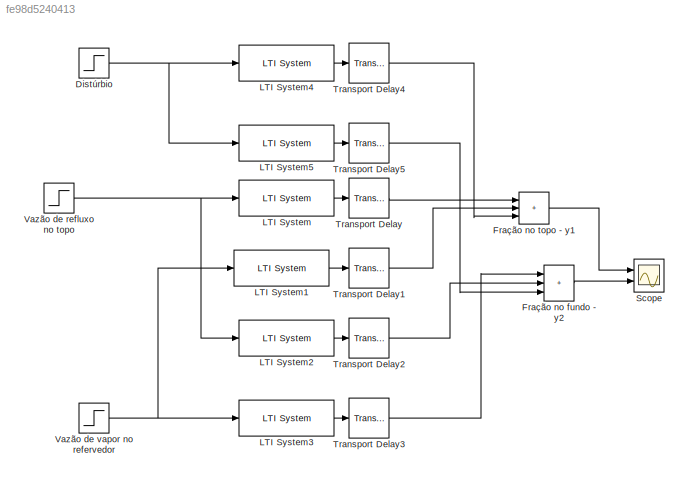
MODEL slx_fe98d5240413
KIND model
CONFIG AbsTol = auto
CONFIG EnableMultiTasking = off
CONFIG FixedStep = auto
CONFIG MaxStep = 1e-3
CONFIG MinStep = 1e-4
CONFIG RelTol = 1e-3
CONFIG SampleTimeConstraint = Unconstrained
CONFIG SolverName = ode45
CONFIG StartTime = 0.0
CONFIG StopTime = 100
BLOCK [Step] Distúrbio
  After = 0
  SampleTime = 0
  Time = 0
BLOCK [Sum] Fração no fundo - y2
  IconShape = rectangular
  Inputs = +++
  Ports = [3, 1]
BLOCK [Sum] Fração no topo - y1
  IconShape = rectangular
  Inputs = +++
  Ports = [3, 1]
BLOCK [Reference] LTI System  REF=cstblocks/LTI System
  Ports = [1, 1]
  SourceBlock = cstblocks/LTI System
  SourceProductBaseCode = CT
  SourceType = LTI Block
BLOCK [Reference] LTI System1  REF=cstblocks/LTI System
  Ports = [1, 1]
  SourceBlock = cstblocks/LTI System
  SourceProductBaseCode = CT
  SourceType = LTI Block
BLOCK [Reference] LTI System2  REF=cstblocks/LTI System
  Ports = [1, 1]
  SourceBlock = cstblocks/LTI System
  SourceProductBaseCode = CT
  SourceType = LTI Block
BLOCK [Reference] LTI System3  REF=cstblocks/LTI System
  Ports = [1, 1]
  SourceBlock = cstblocks/LTI System
  SourceProductBaseCode = CT
  SourceType = LTI Block
BLOCK [Reference] LTI System4  REF=cstblocks/LTI System
  Ports = [1, 1]
  SourceBlock = cstblocks/LTI System
  SourceProductBaseCode = CT
  SourceType = LTI Block
BLOCK [Reference] LTI System5  REF=cstblocks/LTI System
  Ports = [1, 1]
  SourceBlock = cstblocks/LTI System
  SourceProductBaseCode = CT
  SourceType = LTI Block
BLOCK [Scope] Scope
  Floating = off
  NumInputPorts = 2
  Ports = [2]
  ScopeSpecificationString = Simulink.scopes.TimeScopeBlockCfg('CurrentConfiguration', extmgr.ConfigurationSet(extmgr.Configuration('Core','General UI',true,'FigureColor',[1 1 1]),extmgr.Configuration('Core','Source UI',true),extmgr.Configuration('Sources','WiredSimulink',true),extmgr.Configuration('Visuals','Time Domain',true,'SerializedDisplays',{struct('MinYLimReal','-15.09574','MaxYLimReal','15.26759','YLabelReal','','Min...<+1555ch>
BLOCK [TransportDelay] Transport Delay
  Ports = [1, 1]
BLOCK [TransportDelay] Transport Delay1
  DelayTime = 3
  Ports = [1, 1]
BLOCK [TransportDelay] Transport Delay2
  DelayTime = 7
  Ports = [1, 1]
BLOCK [TransportDelay] Transport Delay3
  DelayTime = 3
  Ports = [1, 1]
BLOCK [TransportDelay] Transport Delay4
  DelayTime = thetad1
  Ports = [1, 1]
BLOCK [TransportDelay] Transport Delay5
  DelayTime = thetad2
  Ports = [1, 1]
BLOCK [Step] Vazão de refluxo no topo
  SampleTime = 0
  Time = 0
BLOCK [Step] Vazão de vapor no refervedor
  SampleTime = 0
  Time = 50
NET Distúrbio:1 -> LTI System4:1, LTI System5:1
LINE Fração no fundo - y2:1 -> Scope:2
LINE Fração no topo - y1:1 -> Scope:1
LINE LTI System1:1 -> Transport Delay1:1
LINE LTI System2:1 -> Transport Delay2:1
LINE LTI System3:1 -> Transport Delay3:1
LINE LTI System4:1 -> Transport Delay4:1
LINE LTI System5:1 -> Transport Delay5:1
LINE LTI System:1 -> Transport Delay:1
LINE Transport Delay1:1 -> Fração no topo - y1:2
LINE Transport Delay2:1 -> Fração no fundo - y2:2
LINE Transport Delay3:1 -> Fração no fundo - y2:1
LINE Transport Delay4:1 -> Fração no topo - y1:3
LINE Transport Delay5:1 -> Fração no fundo - y2:3
LINE Transport Delay:1 -> Fração no topo - y1:1
NET Vazão de refluxo no topo:1 -> LTI System2:1, LTI System:1
NET Vazão de vapor no refervedor:1 -> LTI System1:1, LTI System3:1
note: NET lines group one-source signal fan-out (src -> all destinations, sorted); 1:1 wires keep LINE
